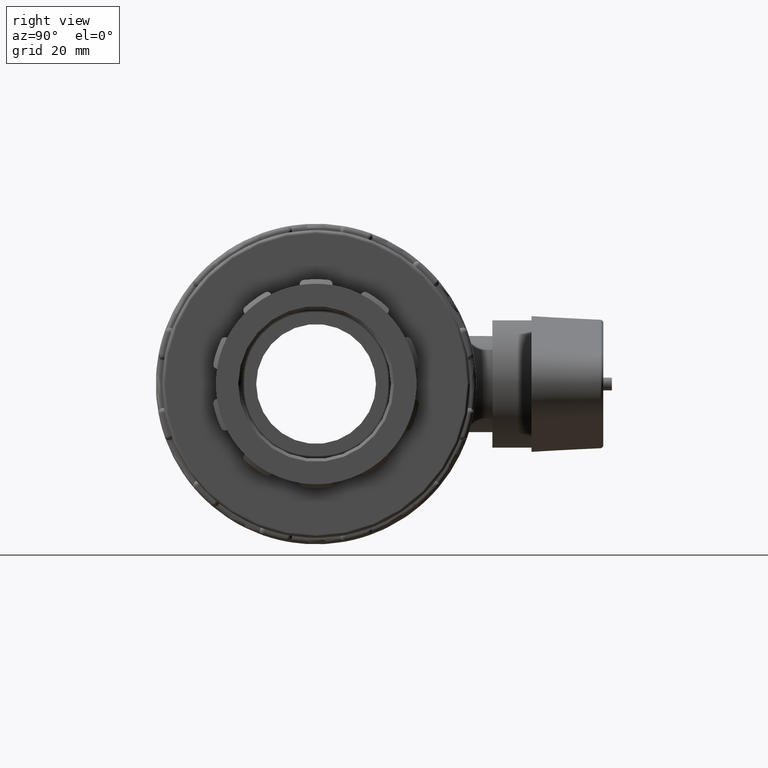
[diagram: clean part render]
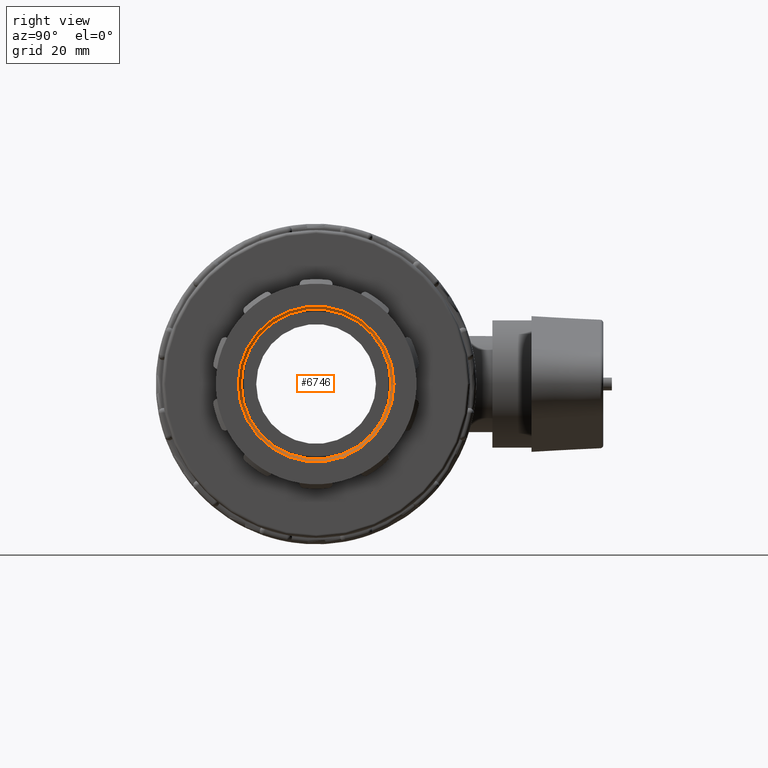
[diagram: same view with one face highlighted and labeled with its STEP entity id]
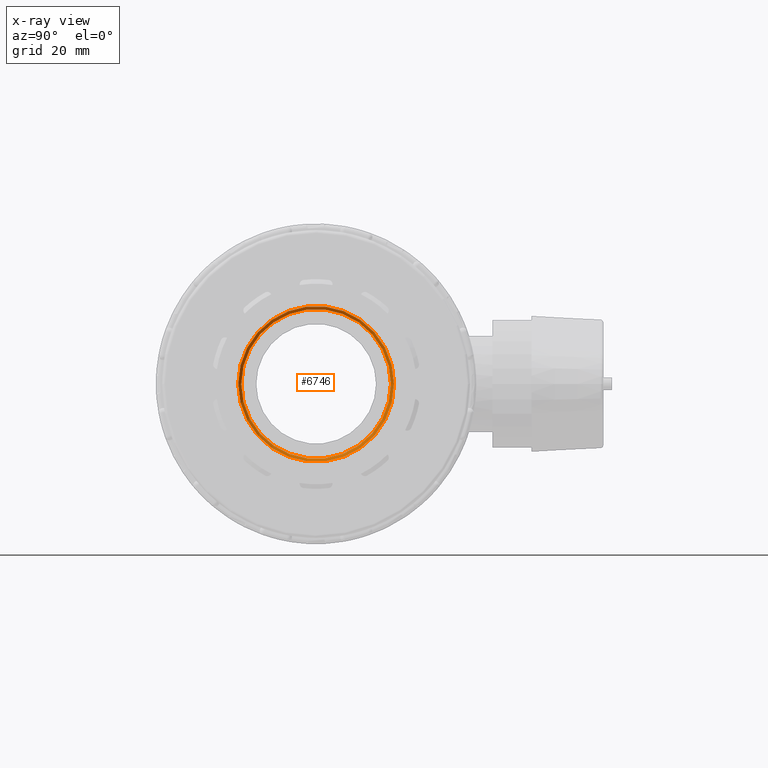
[diagram: x-ray of the same camera — body ghosted, the highlighted face saturated]
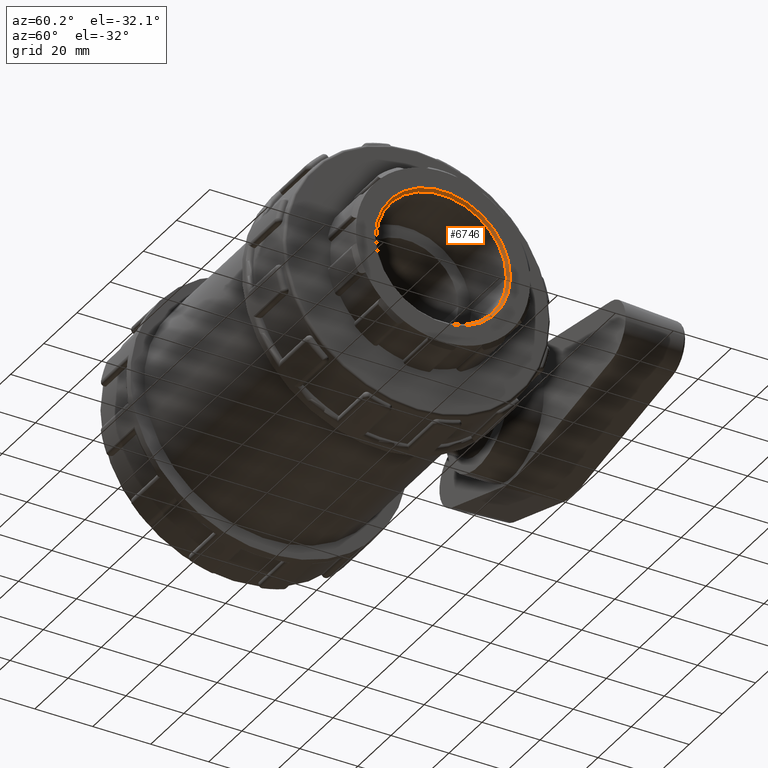
[diagram: same view with one face highlighted and labeled with its STEP entity id]
A machine part, right view. The second image highlights one B-rep face of the part: STEP entity #6746.
The next image is the same camera in x-ray: the body ghosted, the highlighted face saturated — about 0% of this face is hidden behind the body in this view.
A second angle (auxiliary view) of the same face is appended — the face is thin or edge-on in the first view.
In plain terms, the highlighted conical surface has half-angle 45 deg.
Its self-contained STEP definition (entity closure, byte-faithful):
#208=FACE_BOUND('',#992,.T.);
#365=CONICAL_SURFACE('',#7352,22.87095,44.9999999999997);
#549=FACE_OUTER_BOUND('',#991,.T.);
#991=EDGE_LOOP('',(#4857));
#992=EDGE_LOOP('',(#4858));
#2276=CIRCLE('',#7353,23.3194);
#2277=CIRCLE('',#7354,22.4225);
#2824=VERTEX_POINT('',#11448);
#2825=VERTEX_POINT('',#11450);
#3588=EDGE_CURVE('',#2824,#2824,#2276,.T.);
#3589=EDGE_CURVE('',#2825,#2825,#2277,.T.);
#4857=ORIENTED_EDGE('',*,*,#3588,.T.);
#4858=ORIENTED_EDGE('',*,*,#3589,.T.);
#6746=ADVANCED_FACE('',(#549,#208),#365,.F.);
#7352=AXIS2_PLACEMENT_3D('',#11447,#8714,#8715);
#7353=AXIS2_PLACEMENT_3D('',#11449,#8716,#8717);
#7354=AXIS2_PLACEMENT_3D('',#11451,#8718,#8719);
#8714=DIRECTION('center_axis',(1.,0.,0.));
#8715=DIRECTION('ref_axis',(0.,-1.,0.));
#8716=DIRECTION('center_axis',(1.,0.,0.));
#8717=DIRECTION('ref_axis',(0.,-1.,0.));
#8718=DIRECTION('center_axis',(-1.,0.,0.));
#8719=DIRECTION('ref_axis',(0.,-1.,0.));
#11447=CARTESIAN_POINT('Origin',(70.55155,0.,0.));
#11448=CARTESIAN_POINT('',(71.,23.3194,2.85580285680368E-15));
#11449=CARTESIAN_POINT('Origin',(71.,0.,0.));
#11450=CARTESIAN_POINT('',(70.1031,22.4225,-2.74596428538815E-15));
#11451=CARTESIAN_POINT('Origin',(70.1031,0.,0.));